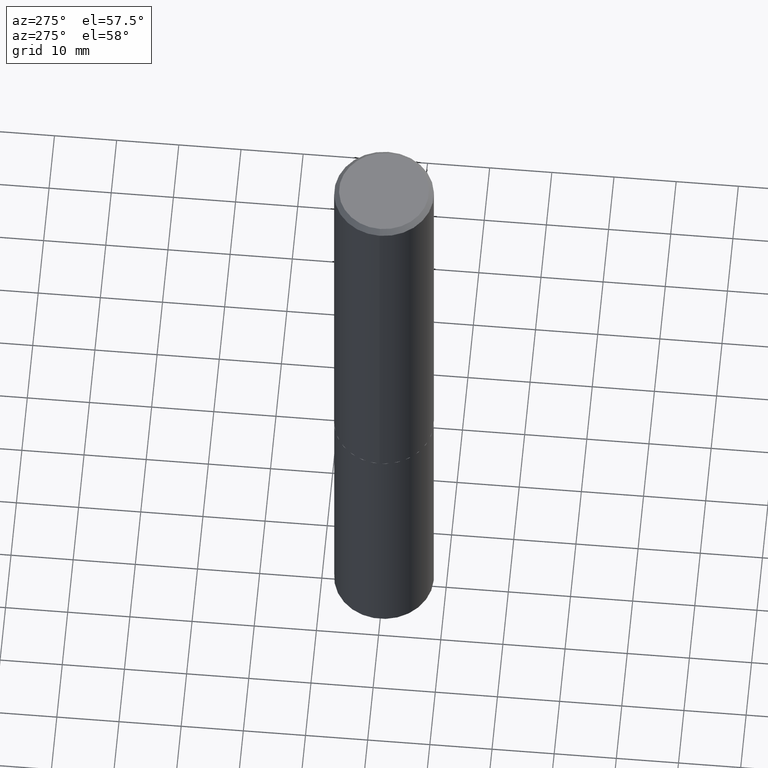
[diagram: clean part render]
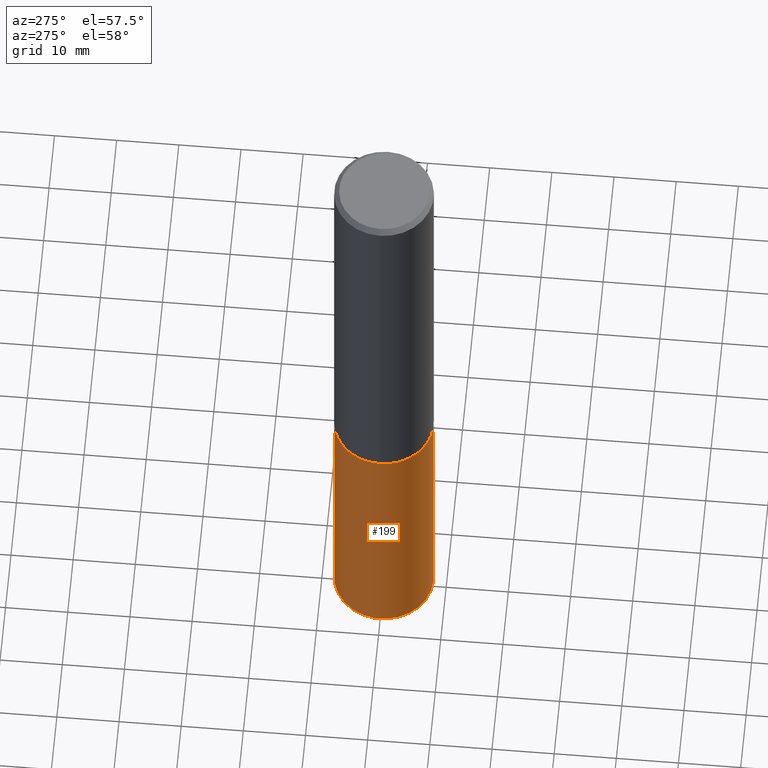
[diagram: same view with one face highlighted and labeled with its STEP entity id]
A machine part, auxiliary view. The second image highlights one B-rep face of the part: STEP entity #199.
In plain terms, the highlighted cylindrical surface (partial cylindrical patch) has radius 7.9997 mm, axis along (-0, 0, 1).
Its self-contained STEP definition (entity closure, byte-faithful):
#9 = ORIENTED_EDGE ( 'NONE', *, *, #268, .T. ) ;
#13 = EDGE_LOOP ( 'NONE', ( #95, #316, #9, #120 ) ) ;
#20 = CARTESIAN_POINT ( 'NONE',  ( 6.618905870820689755E-29, -9.450043391712855461E-15, -2.706599999999999451 ) ) ;
#33 = VERTEX_POINT ( 'NONE', #100 ) ;
#50 = LINE ( 'NONE', #271, #287 ) ;
#53 = DIRECTION ( 'NONE',  ( -2.444512680604651290E-29, 3.492850565093688912E-15, 1.000000000000000000 ) ) ;
#63 = CIRCLE ( 'NONE', #70, 0.3149500000000000077 ) ;
#69 = AXIS2_PLACEMENT_3D ( 'NONE', #20, #229, #124 ) ;
#70 = AXIS2_PLACEMENT_3D ( 'NONE', #247, #53, #366 ) ;
#78 = CARTESIAN_POINT ( 'NONE',  ( 2.237854346276523548E-15, 0.3149499999999842426, -4.527600000000001401 ) ) ;
#85 = LINE ( 'NONE', #216, #97 ) ;
#95 = ORIENTED_EDGE ( 'NONE', *, *, #240, .F. ) ;
#97 = VECTOR ( 'NONE', #194, 39.37007874015748143 ) ;
#100 = CARTESIAN_POINT ( 'NONE',  ( -2.199284095337223212E-15, -0.3149500000000094446, -2.706599999999998563 ) ) ;
#104 = EDGE_CURVE ( 'NONE', #259, #33, #346, .T. ) ;
#118 = VERTEX_POINT ( 'NONE', #233 ) ;
#120 = ORIENTED_EDGE ( 'NONE', *, *, #104, .F. ) ;
#124 = DIRECTION ( 'NONE',  ( -6.982962677686265922E-15, -1.000000000000000000, 3.469564049740292770E-15 ) ) ;
#127 = DIRECTION ( 'NONE',  ( -2.444512680604651290E-29, 3.492850565093688912E-15, 1.000000000000000000 ) ) ;
#182 = DIRECTION ( 'NONE',  ( -6.982962677686265922E-15, -1.000000000000000000, 3.469564049740292770E-15 ) ) ;
#185 = AXIS2_PLACEMENT_3D ( 'NONE', #265, #127, #182 ) ;
#194 = DIRECTION ( 'NONE',  ( -2.444512680604651010E-29, 3.492850565093688518E-15, 1.000000000000000000 ) ) ;
#199 = ADVANCED_FACE ( 'NONE', ( #261 ), #211, .T. ) ;
#211 = CYLINDRICAL_SURFACE ( 'NONE', #69, 0.3149500000000000077 ) ;
#216 = CARTESIAN_POINT ( 'NONE',  ( 2.237854346276501066E-15, 0.3149499999999905708, -2.706600000000000783 ) ) ;
#229 = DIRECTION ( 'NONE',  ( -2.444512680604651290E-29, 3.492850565093688912E-15, 1.000000000000000000 ) ) ;
#233 = CARTESIAN_POINT ( 'NONE',  ( -2.199284095337178641E-15, -0.3149500000000157729, -4.527599999999999625 ) ) ;
#240 = EDGE_CURVE ( 'NONE', #290, #259, #85, .T. ) ;
#247 = CARTESIAN_POINT ( 'NONE',  ( 1.107036346220176247E-28, -1.581052427074846768E-14, -4.527600000000000513 ) ) ;
#259 = VERTEX_POINT ( 'NONE', #363 ) ;
#261 = FACE_OUTER_BOUND ( 'NONE', #13, .T. ) ;
#265 = CARTESIAN_POINT ( 'NONE',  ( 6.618905870820689755E-29, -9.450043391712855461E-15, -2.706599999999999451 ) ) ;
#268 = EDGE_CURVE ( 'NONE', #118, #33, #50, .T. ) ;
#271 = CARTESIAN_POINT ( 'NONE',  ( -2.199284095337223212E-15, -0.3149500000000094446, -2.706599999999998563 ) ) ;
#287 = VECTOR ( 'NONE', #338, 39.37007874015748143 ) ;
#290 = VERTEX_POINT ( 'NONE', #78 ) ;
#305 = EDGE_CURVE ( 'NONE', #290, #118, #63, .T. ) ;
#316 = ORIENTED_EDGE ( 'NONE', *, *, #305, .T. ) ;
#338 = DIRECTION ( 'NONE',  ( -2.444512680604651010E-29, 3.492850565093688518E-15, 1.000000000000000000 ) ) ;
#346 = CIRCLE ( 'NONE', #185, 0.3149500000000000077 ) ;
#363 = CARTESIAN_POINT ( 'NONE',  ( 2.237854346276545636E-15, 0.3149499999999905708, -2.706600000000000783 ) ) ;
#366 = DIRECTION ( 'NONE',  ( -6.982962677686265922E-15, -1.000000000000000000, 3.469564049740292770E-15 ) ) ;